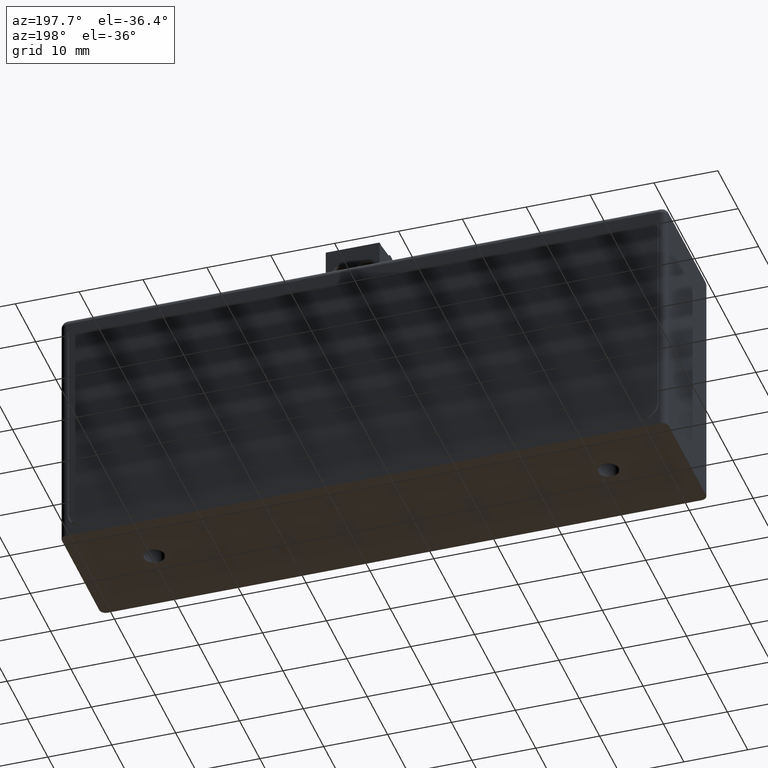
[diagram: clean part render]
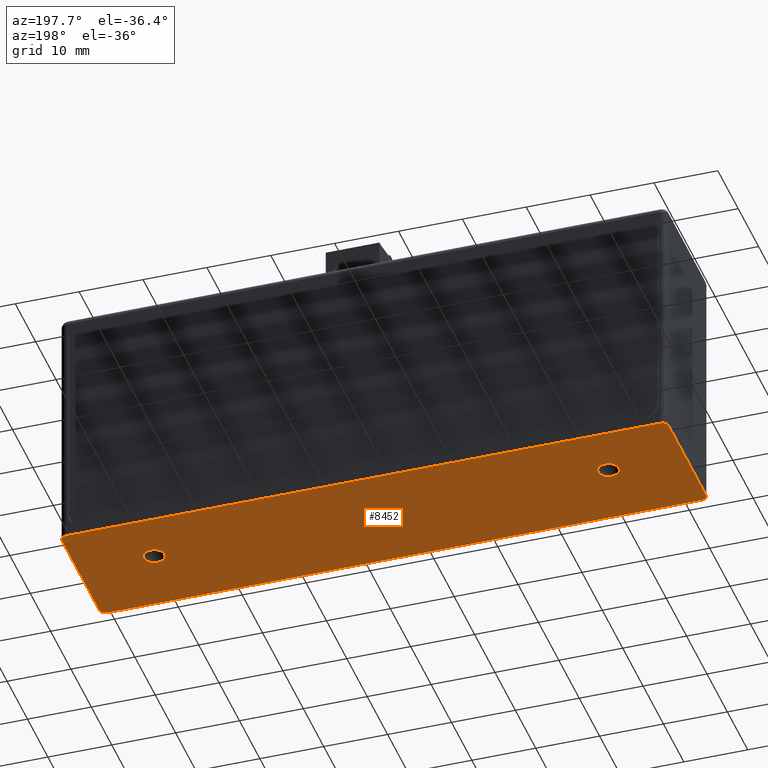
[diagram: same view with one face highlighted and labeled with its STEP entity id]
A machine part, auxiliary view. The second image highlights one B-rep face of the part: STEP entity #8452.
In plain terms, the highlighted planar face has unit normal (0, 0, 1).
Its self-contained STEP definition (entity closure, byte-faithful):
#117 = DIRECTION ( 'NONE',  ( 0.000000000000000000, 0.000000000000000000, -1.000000000000000000 ) ) ;
#119 = FACE_OUTER_BOUND ( 'NONE', #24183, .T. ) ;
#126 = EDGE_CURVE ( 'NONE', #15301, #16641, #2319, .T. ) ;
#152 = CARTESIAN_POINT ( 'NONE',  ( 81.42804999999999893, 11.43000000000000504, 0.000000000000000000 ) ) ;
#560 = CARTESIAN_POINT ( 'NONE',  ( 11.94000000000000838, 11.42999999999999972, 0.000000000000000000 ) ) ;
#680 = DIRECTION ( 'NONE',  ( 0.000000000000000000, 0.000000000000000000, -1.000000000000000000 ) ) ;
#704 = CARTESIAN_POINT ( 'NONE',  ( 95.00000000000000000, 0.000000000000000000, 0.000000000000000000 ) ) ;
#771 = VERTEX_POINT ( 'NONE', #2309 ) ;
#965 = VERTEX_POINT ( 'NONE', #12745 ) ;
#1446 = CARTESIAN_POINT ( 'NONE',  ( 84.69194999999999141, 11.43000000000000504, 0.000000000000000000 ) ) ;
#1803 = CIRCLE ( 'NONE', #18482, 1.016000000000003123 ) ;
#2309 = CARTESIAN_POINT ( 'NONE',  ( 95.00000000000000000, 1.016000000000000014, 0.000000000000000000 ) ) ;
#2319 = CIRCLE ( 'NONE', #8996, 1.631949999999993128 ) ;
#2480 = DIRECTION ( 'NONE',  ( -0.000000000000000000, -0.000000000000000000, 1.000000000000000000 ) ) ;
#2725 = DIRECTION ( 'NONE',  ( 1.000000000000000000, 0.000000000000000000, -0.000000000000000000 ) ) ;
#2855 = FACE_BOUND ( 'NONE', #21470, .T. ) ;
#3062 = CIRCLE ( 'NONE', #18050, 1.016000000000000014 ) ;
#3143 = EDGE_CURVE ( 'NONE', #4522, #24191, #20367, .T. ) ;
#3398 = AXIS2_PLACEMENT_3D ( 'NONE', #8605, #13011, #2725 ) ;
#3938 = CARTESIAN_POINT ( 'NONE',  ( 95.00000000000000000, 0.000000000000000000, 0.000000000000000000 ) ) ;
#4047 = CIRCLE ( 'NONE', #16569, 1.631949999999993128 ) ;
#4143 = ORIENTED_EDGE ( 'NONE', *, *, #3143, .F. ) ;
#4396 = VERTEX_POINT ( 'NONE', #14614 ) ;
#4522 = VERTEX_POINT ( 'NONE', #23192 ) ;
#4754 = CARTESIAN_POINT ( 'NONE',  ( 83.05999999999998806, 11.43000000000000504, 0.000000000000000000 ) ) ;
#5695 = CARTESIAN_POINT ( 'NONE',  ( 10.30805000000001037, 11.42999999999999972, 0.000000000000000000 ) ) ;
#5709 = ORIENTED_EDGE ( 'NONE', *, *, #21633, .F. ) ;
#6130 = AXIS2_PLACEMENT_3D ( 'NONE', #15510, #117, #7941 ) ;
#6416 = CARTESIAN_POINT ( 'NONE',  ( 83.05999999999998806, 11.43000000000000504, 0.000000000000000000 ) ) ;
#6712 = EDGE_CURVE ( 'NONE', #965, #23154, #22215, .T. ) ;
#6781 = AXIS2_PLACEMENT_3D ( 'NONE', #560, #680, #16337 ) ;
#7195 = CIRCLE ( 'NONE', #6781, 1.631949999999998235 ) ;
#7941 = DIRECTION ( 'NONE',  ( 1.000000000000000000, 0.000000000000000000, 0.000000000000000000 ) ) ;
#7995 = DIRECTION ( 'NONE',  ( -0.000000000000000000, 1.000000000000000000, 0.000000000000000000 ) ) ;
#8005 = VECTOR ( 'NONE', #12270, 1000.000000000000000 ) ;
#8286 = DIRECTION ( 'NONE',  ( 0.000000000000000000, 0.000000000000000000, -1.000000000000000000 ) ) ;
#8404 = ORIENTED_EDGE ( 'NONE', *, *, #10352, .F. ) ;
#8452 = ADVANCED_FACE ( 'NONE', ( #119, #8733, #2855 ), #22536, .F. ) ;
#8605 = CARTESIAN_POINT ( 'NONE',  ( 95.00000000000000000, 0.000000000000000000, 0.000000000000000000 ) ) ;
#8677 = DIRECTION ( 'NONE',  ( -1.000000000000000000, -0.000000000000000000, -0.000000000000000000 ) ) ;
#8733 = FACE_BOUND ( 'NONE', #20760, .T. ) ;
#8996 = AXIS2_PLACEMENT_3D ( 'NONE', #4754, #8286, #18706 ) ;
#9553 = ORIENTED_EDGE ( 'NONE', *, *, #10210, .F. ) ;
#9846 = DIRECTION ( 'NONE',  ( -0.000000000000000000, -0.000000000000000000, 1.000000000000000000 ) ) ;
#10210 = EDGE_CURVE ( 'NONE', #4396, #23154, #3062, .T. ) ;
#10352 = EDGE_CURVE ( 'NONE', #965, #771, #1803, .T. ) ;
#10376 = AXIS2_PLACEMENT_3D ( 'NONE', #17276, #24980, #21187 ) ;
#10403 = VERTEX_POINT ( 'NONE', #5695 ) ;
#10443 = DIRECTION ( 'NONE',  ( -1.000000000000000000, 0.000000000000000000, 0.000000000000000000 ) ) ;
#10945 = CARTESIAN_POINT ( 'NONE',  ( 1.016000000000003123, 1.016000000000000014, 0.000000000000000000 ) ) ;
#11326 = AXIS2_PLACEMENT_3D ( 'NONE', #12070, #9846, #13894 ) ;
#11327 = VECTOR ( 'NONE', #7995, 1000.000000000000000 ) ;
#12070 = CARTESIAN_POINT ( 'NONE',  ( 93.98399999999999466, 19.30400000000000205, 0.000000000000000000 ) ) ;
#12270 = DIRECTION ( 'NONE',  ( -1.000000000000000000, -0.000000000000000000, 0.000000000000000000 ) ) ;
#12460 = VERTEX_POINT ( 'NONE', #21853 ) ;
#12745 = CARTESIAN_POINT ( 'NONE',  ( 93.98399999999999466, 0.000000000000000000, 0.000000000000000000 ) ) ;
#12910 = VERTEX_POINT ( 'NONE', #22083 ) ;
#13011 = DIRECTION ( 'NONE',  ( 0.000000000000000000, 0.000000000000000000, 1.000000000000000000 ) ) ;
#13023 = ORIENTED_EDGE ( 'NONE', *, *, #6712, .T. ) ;
#13107 = ORIENTED_EDGE ( 'NONE', *, *, #24247, .F. ) ;
#13269 = DIRECTION ( 'NONE',  ( 1.000000000000000000, 0.000000000000000000, 0.000000000000000000 ) ) ;
#13345 = CARTESIAN_POINT ( 'NONE',  ( 1.016000000000003123, 0.000000000000000000, 0.000000000000000000 ) ) ;
#13502 = EDGE_CURVE ( 'NONE', #10403, #19658, #14853, .T. ) ;
#13894 = DIRECTION ( 'NONE',  ( -1.000000000000000000, 0.000000000000000000, 0.000000000000000000 ) ) ;
#14223 = LINE ( 'NONE', #16557, #8005 ) ;
#14357 = DIRECTION ( 'NONE',  ( 0.000000000000000000, 0.000000000000000000, -1.000000000000000000 ) ) ;
#14614 = CARTESIAN_POINT ( 'NONE',  ( 1.517883041479706208E-15, 1.016000000000000014, 0.000000000000000000 ) ) ;
#14853 = CIRCLE ( 'NONE', #6130, 1.631949999999998235 ) ;
#15301 = VERTEX_POINT ( 'NONE', #1446 ) ;
#15510 = CARTESIAN_POINT ( 'NONE',  ( 11.94000000000000838, 11.42999999999999972, 0.000000000000000000 ) ) ;
#15898 = CIRCLE ( 'NONE', #11326, 1.016000000000003123 ) ;
#16180 = DIRECTION ( 'NONE',  ( 1.000000000000000000, 0.000000000000000000, 0.000000000000000000 ) ) ;
#16268 = VECTOR ( 'NONE', #8677, 1000.000000000000000 ) ;
#16337 = DIRECTION ( 'NONE',  ( 1.000000000000000000, 0.000000000000000000, 0.000000000000000000 ) ) ;
#16557 = CARTESIAN_POINT ( 'NONE',  ( 95.00000000000000000, 20.32000000000000028, 0.000000000000000000 ) ) ;
#16569 = AXIS2_PLACEMENT_3D ( 'NONE', #6416, #14357, #16180 ) ;
#16641 = VERTEX_POINT ( 'NONE', #152 ) ;
#17276 = CARTESIAN_POINT ( 'NONE',  ( 1.016000000000003123, 19.30400000000000205, 0.000000000000000000 ) ) ;
#17326 = LINE ( 'NONE', #25800, #25392 ) ;
#17453 = ORIENTED_EDGE ( 'NONE', *, *, #126, .F. ) ;
#18050 = AXIS2_PLACEMENT_3D ( 'NONE', #10945, #2480, #10443 ) ;
#18060 = EDGE_CURVE ( 'NONE', #24191, #4396, #17326, .T. ) ;
#18482 = AXIS2_PLACEMENT_3D ( 'NONE', #23176, #25397, #13269 ) ;
#18706 = DIRECTION ( 'NONE',  ( 1.000000000000000000, 0.000000000000000000, 0.000000000000000000 ) ) ;
#19560 = CARTESIAN_POINT ( 'NONE',  ( 0.000000000000000000, 19.30400000000000205, 0.000000000000000000 ) ) ;
#19658 = VERTEX_POINT ( 'NONE', #21977 ) ;
#19975 = ORIENTED_EDGE ( 'NONE', *, *, #20676, .F. ) ;
#20241 = ORIENTED_EDGE ( 'NONE', *, *, #13502, .F. ) ;
#20367 = CIRCLE ( 'NONE', #10376, 1.016000000000000014 ) ;
#20676 = EDGE_CURVE ( 'NONE', #19658, #10403, #7195, .T. ) ;
#20760 = EDGE_LOOP ( 'NONE', ( #17453, #21740 ) ) ;
#21187 = DIRECTION ( 'NONE',  ( 1.000000000000000000, 0.000000000000000000, 0.000000000000000000 ) ) ;
#21414 = ORIENTED_EDGE ( 'NONE', *, *, #18060, .F. ) ;
#21470 = EDGE_LOOP ( 'NONE', ( #19975, #20241 ) ) ;
#21633 = EDGE_CURVE ( 'NONE', #12460, #12910, #15898, .T. ) ;
#21740 = ORIENTED_EDGE ( 'NONE', *, *, #25508, .F. ) ;
#21797 = LINE ( 'NONE', #3938, #11327 ) ;
#21853 = CARTESIAN_POINT ( 'NONE',  ( 95.00000000000000000, 19.30400000000000205, 0.000000000000000000 ) ) ;
#21977 = CARTESIAN_POINT ( 'NONE',  ( 13.57195000000000640, 11.42999999999999972, 0.000000000000000000 ) ) ;
#22083 = CARTESIAN_POINT ( 'NONE',  ( 93.98399999999999466, 20.32000000000000028, 0.000000000000000000 ) ) ;
#22215 = LINE ( 'NONE', #704, #16268 ) ;
#22536 = PLANE ( 'NONE',  #3398 ) ;
#23154 = VERTEX_POINT ( 'NONE', #13345 ) ;
#23176 = CARTESIAN_POINT ( 'NONE',  ( 93.98399999999999466, 1.016000000000000014, 0.000000000000000000 ) ) ;
#23192 = CARTESIAN_POINT ( 'NONE',  ( 1.016000000000003123, 20.32000000000000028, 0.000000000000000000 ) ) ;
#23724 = EDGE_CURVE ( 'NONE', #771, #12460, #21797, .T. ) ;
#24183 = EDGE_LOOP ( 'NONE', ( #9553, #21414, #4143, #13107, #5709, #25207, #8404, #13023 ) ) ;
#24191 = VERTEX_POINT ( 'NONE', #19560 ) ;
#24247 = EDGE_CURVE ( 'NONE', #12910, #4522, #14223, .T. ) ;
#24980 = DIRECTION ( 'NONE',  ( 0.000000000000000000, 0.000000000000000000, 1.000000000000000000 ) ) ;
#25207 = ORIENTED_EDGE ( 'NONE', *, *, #23724, .F. ) ;
#25392 = VECTOR ( 'NONE', #25541, 1000.000000000000000 ) ;
#25397 = DIRECTION ( 'NONE',  ( 0.000000000000000000, 0.000000000000000000, 1.000000000000000000 ) ) ;
#25508 = EDGE_CURVE ( 'NONE', #16641, #15301, #4047, .T. ) ;
#25541 = DIRECTION ( 'NONE',  ( 0.000000000000000000, -1.000000000000000000, -0.000000000000000000 ) ) ;
#25800 = CARTESIAN_POINT ( 'NONE',  ( 0.000000000000000000, 0.000000000000000000, 0.000000000000000000 ) ) ;